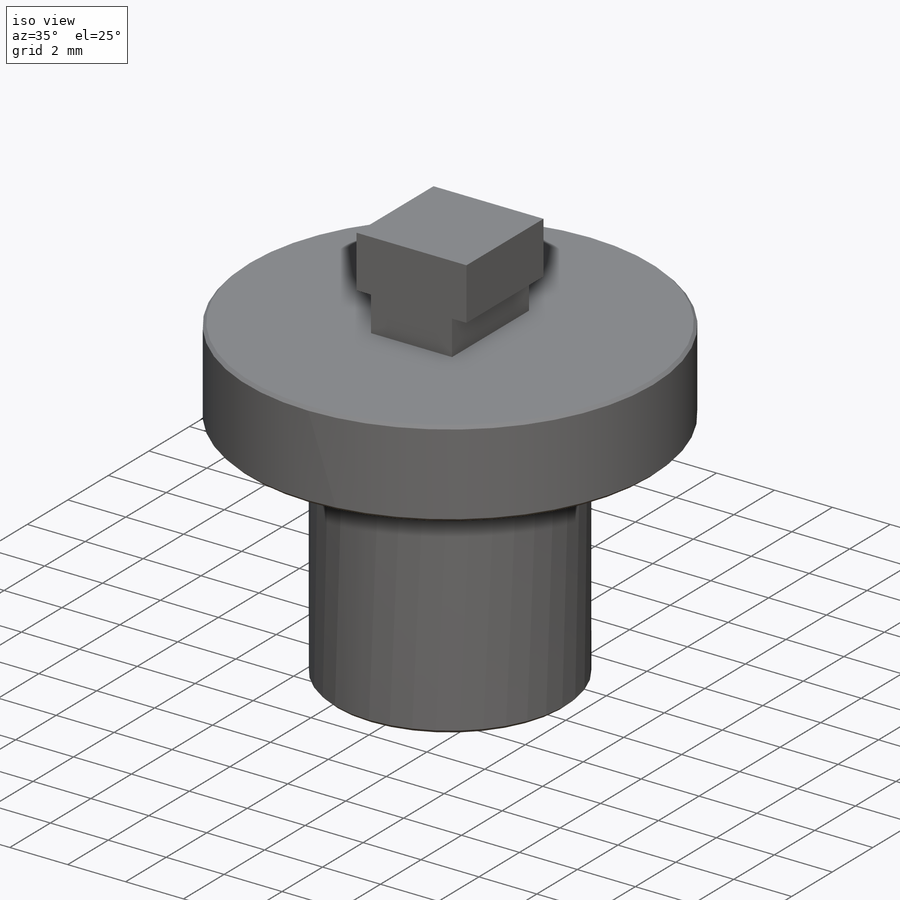
[diagram: iso view]
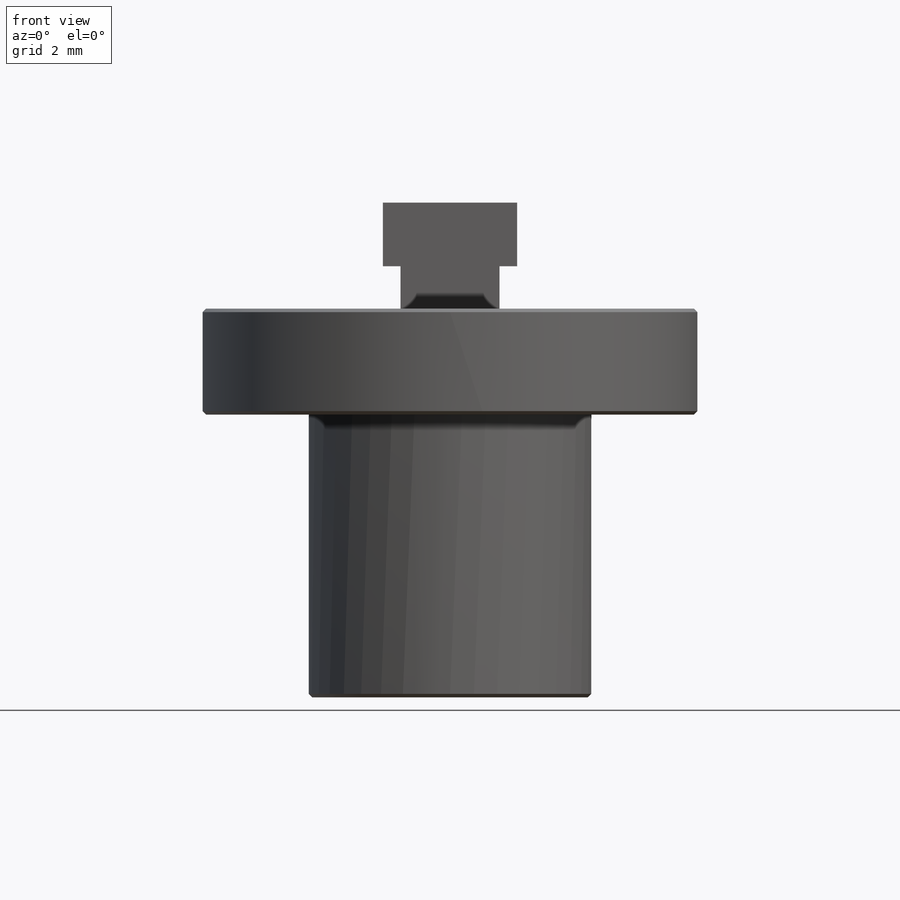
[diagram: front view]
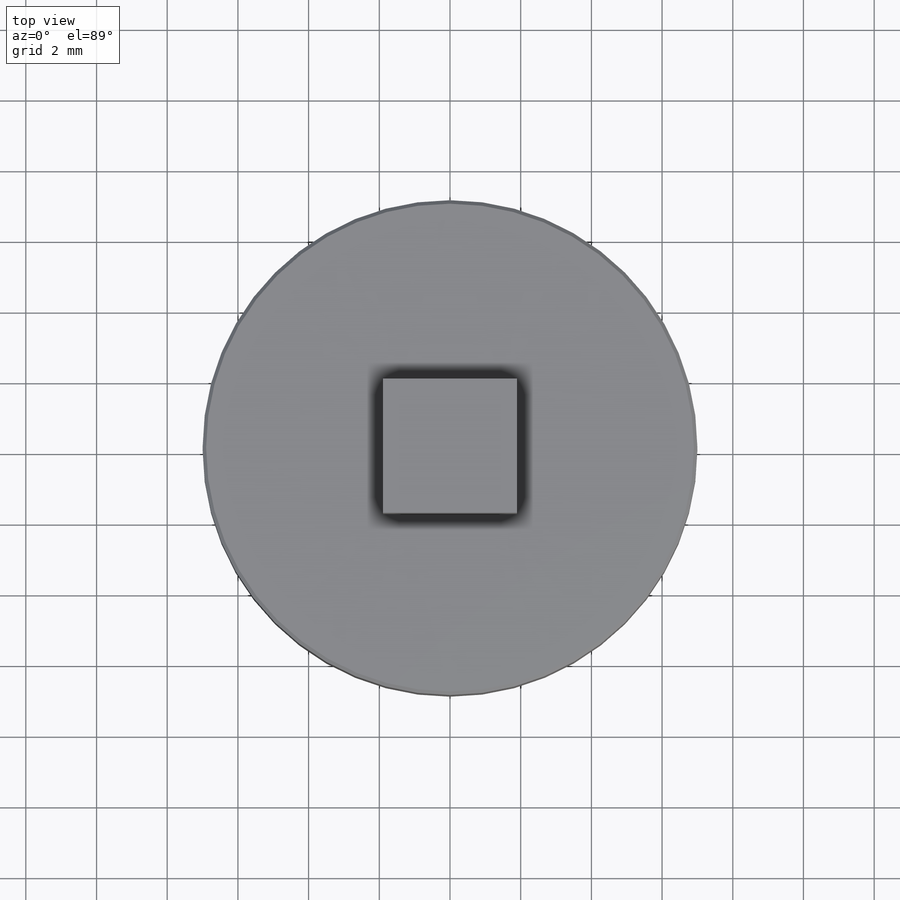
[diagram: top view]
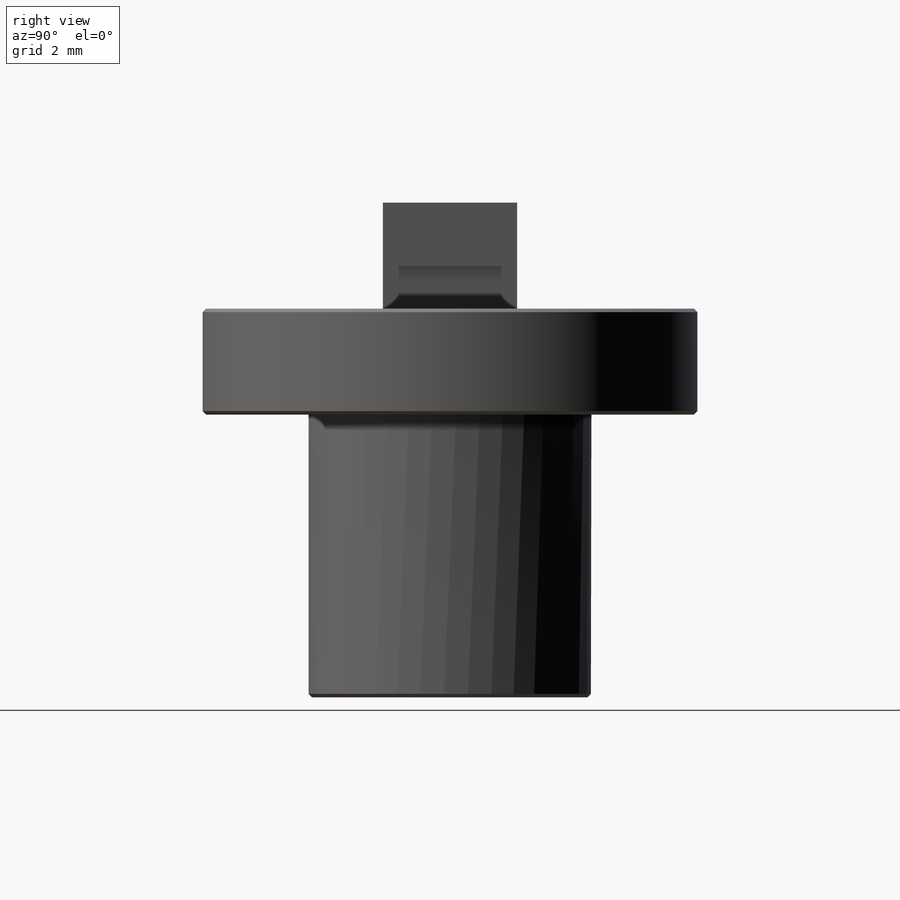
[diagram: right view]
SOLIDWORKS PART (.sldprt)
format: sldprt  version: not decoded by parser v0  size: 182,272 bytes
history: native  units: mm
features: sketch x5, plane x3, extrude x3, cut_extrude x2, material x1, chamfer x1 + 3 further entries (+7 scaffold rows collapsed)
feature tree (25):
  scaffold x7  (default folders/planes/origin — collapsed)
  material  "Material <not specified>"
  "곡면 바디"
  "솔리드 바디"
  plane  "정면"
  plane  "윗면"
  plane  "우측면"
  "원점"
  sketch  "Sketch1"  dims[D1=8.0mm]
  extrude  "Boss-Extrude1"  Depth=11mm
  sketch  "Sketch2"  dims[c1.D1=~1.793245mm c1.D2=~1.806334mm c2.D1=3.8mm c2.D2=3.8mm]
  cut_extrude  "Cut-Extrude1"  Depth=4mm
  sketch  "Sketch3"  dims[c1.D1=~2.500071mm c1.D2=~2.382266mm c2.D1=3.8mm c2.D2=3.8mm]
  extrude  "Boss-Extrude2"  Depth=3mm
  sketch  "Sketch4"  dims[c1.D1=~1.142489mm c1.D2=~1.098276mm c2.D1=~1.142489mm c2.D2=~1.052463mm c3.D1=0.5mm c3.D2=0.5mm c3.D3=1.2mm c3.D4=1.2mm]
  cut_extrude  "Cut-Extrude2"  Depth=13mm
  sketch  "Sketch5"  dims[D1=14.0mm]
  extrude  "Boss-Extrude3"  Depth=3mm
  chamfer  "Chamfer1"  Distance=0.1mm Angle=45deg
decode coverage: 11 of 11 modeling features carry decoded parameters; 3 rows unclassified (native names shown)
note: ~ marks probable driven/reference dimensions
note: suppression state not decoded; provenance and decode notes live in map.json
